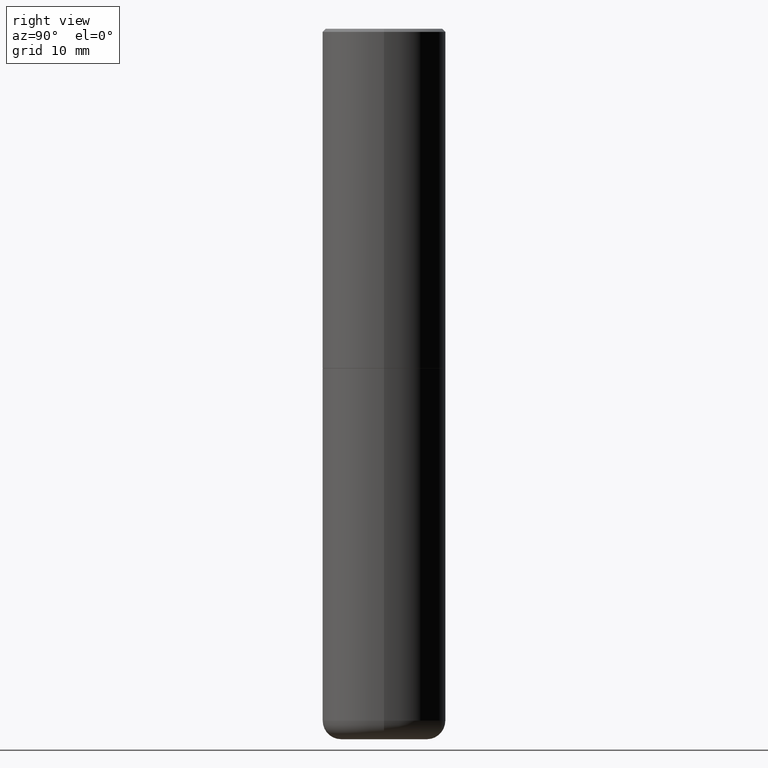
[diagram: clean part render]
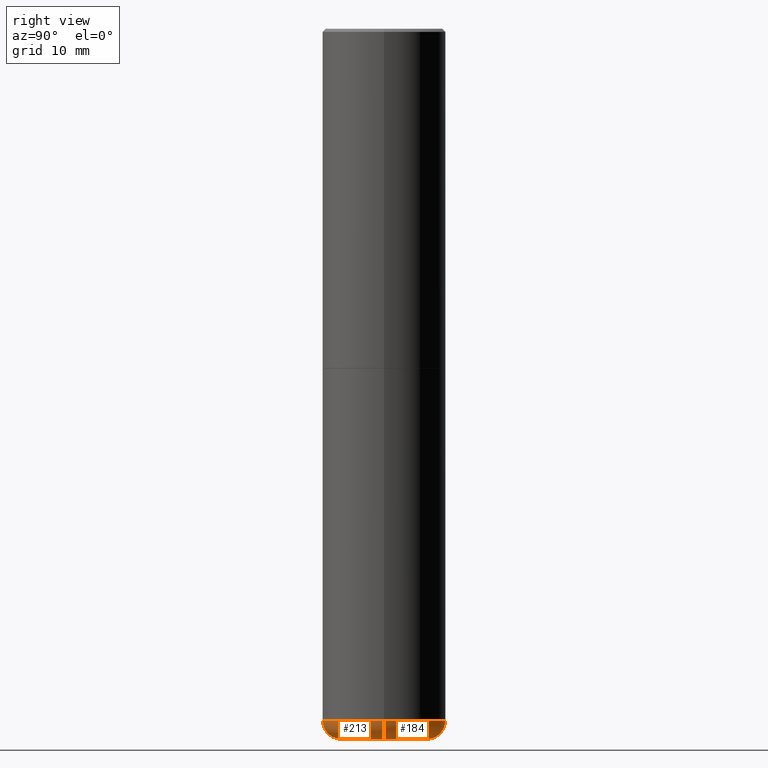
[diagram: same view with one multi-face feature highlighted, each face labeled with its STEP entity id]
A machine part, right view. The highlighted faces form ONE feature: a constant-radius fillet chain: 2 tangent blend faces with common blend radius 2.9997 mm. The faces share edges in the B-rep.
Their STEP definitions:
[1] entity #184 (Torus):
#2 = VERTEX_POINT ( 'NONE', #106 ) ;
#5 = DIRECTION ( 'NONE',  ( -2.445468806185136597E-29, 3.491481338843145583E-15, 1.000000000000000000 ) ) ;
#8 = VERTEX_POINT ( 'NONE', #70 ) ;
#26 = DIRECTION ( 'NONE',  ( -6.982962677686266711E-15, -1.000000000000000000, 3.491481338843145583E-15 ) ) ;
#27 = CARTESIAN_POINT ( 'NONE',  ( 1.078329470087335798E-28, -1.539568696362884818E-14, -4.409499999999999531 ) ) ;
#59 = ORIENTED_EDGE ( 'NONE', *, *, #405, .F. ) ;
#61 = CIRCLE ( 'NONE', #300, 0.1180999999999997191 ) ;
#64 = CARTESIAN_POINT ( 'NONE',  ( 0.2756000000000000116, -1.773253542371655569E-14, -4.527599999999998737 ) ) ;
#69 = AXIS2_PLACEMENT_3D ( 'NONE', #295, #5, #298 ) ;
#70 = CARTESIAN_POINT ( 'NONE',  ( 0.3936999999999998834, -1.814487936983393140E-14, -4.409499999999999531 ) ) ;
#75 = EDGE_CURVE ( 'NONE', #2, #132, #61, .T. ) ;
#76 = EDGE_CURVE ( 'NONE', #8, #132, #394, .T. ) ;
#106 = CARTESIAN_POINT ( 'NONE',  ( -0.2756000000000000116, -1.322402767146636311E-14, -4.527599999999998737 ) ) ;
#115 = DIRECTION ( 'NONE',  ( -2.445468806185136597E-29, 3.491481338843145583E-15, 1.000000000000000000 ) ) ;
#120 = CARTESIAN_POINT ( 'NONE',  ( -0.2756000000000000116, -1.343743118387401317E-14, -4.409499999999999531 ) ) ;
#123 = DIRECTION ( 'NONE',  ( 1.000000000000000000, -6.982962677686262766E-15, 0.000000000000000000 ) ) ;
#130 = TOROIDAL_SURFACE ( 'NONE', #248, 0.2756000000000000116, 0.1180999999999997468 ) ;
#132 = VERTEX_POINT ( 'NONE', #215 ) ;
#151 = EDGE_CURVE ( 'NONE', #167, #2, #209, .T. ) ;
#159 = DIRECTION ( 'NONE',  ( -2.445468806185136597E-29, 3.491481338843145583E-15, 1.000000000000000000 ) ) ;
#164 = AXIS2_PLACEMENT_3D ( 'NONE', #27, #159, #123 ) ;
#167 = VERTEX_POINT ( 'NONE', #64 ) ;
#184 = ADVANCED_FACE ( 'NONE', ( #219 ), #130, .T. ) ;
#194 = CARTESIAN_POINT ( 'NONE',  ( 0.2756000000000000116, -1.732019147759918314E-14, -4.409499999999999531 ) ) ;
#209 = CIRCLE ( 'NONE', #69, 0.2756000000000000116 ) ;
#215 = CARTESIAN_POINT ( 'NONE',  ( -0.3936999999999998834, -1.259828021294133576E-14, -4.409499999999999531 ) ) ;
#216 = DIRECTION ( 'NONE',  ( 1.000000000000000000, -6.982962677686268288E-15, 4.883557194083112901E-29 ) ) ;
#218 = CIRCLE ( 'NONE', #365, 0.1180999999999997191 ) ;
#219 = FACE_OUTER_BOUND ( 'NONE', #270, .T. ) ;
#248 = AXIS2_PLACEMENT_3D ( 'NONE', #397, #115, #216 ) ;
#258 = DIRECTION ( 'NONE',  ( -1.000000000000000000, 7.105427357601005014E-15, 0.000000000000000000 ) ) ;
#263 = ORIENTED_EDGE ( 'NONE', *, *, #151, .T. ) ;
#270 = EDGE_LOOP ( 'NONE', ( #263, #417, #359, #59 ) ) ;
#295 = CARTESIAN_POINT ( 'NONE',  ( 1.107210456688382074E-28, -1.580803090974622074E-14, -4.527599999999998737 ) ) ;
#298 = DIRECTION ( 'NONE',  ( 1.000000000000000000, -6.982962677686265922E-15, 0.000000000000000000 ) ) ;
#300 = AXIS2_PLACEMENT_3D ( 'NONE', #120, #319, #258 ) ;
#319 = DIRECTION ( 'NONE',  ( 7.105427357601001859E-15, 1.000000000000000000, -3.491481338843145583E-15 ) ) ;
#324 = DIRECTION ( 'NONE',  ( 1.000000000000000000, -6.982962677686273021E-15, 0.000000000000000000 ) ) ;
#359 = ORIENTED_EDGE ( 'NONE', *, *, #76, .F. ) ;
#365 = AXIS2_PLACEMENT_3D ( 'NONE', #194, #26, #324 ) ;
#394 = CIRCLE ( 'NONE', #164, 0.3937000000000000499 ) ;
#397 = CARTESIAN_POINT ( 'NONE',  ( 1.078329470087335798E-28, -1.539568696362884818E-14, -4.409499999999999531 ) ) ;
#405 = EDGE_CURVE ( 'NONE', #167, #8, #218, .T. ) ;
#417 = ORIENTED_EDGE ( 'NONE', *, *, #75, .T. ) ;
[2] entity #213 (Torus):
#2 = VERTEX_POINT ( 'NONE', #106 ) ;
#8 = VERTEX_POINT ( 'NONE', #70 ) ;
#14 = CARTESIAN_POINT ( 'NONE',  ( 1.078329470087335798E-28, -1.539568696362884818E-14, -4.409499999999999531 ) ) ;
#26 = DIRECTION ( 'NONE',  ( -6.982962677686266711E-15, -1.000000000000000000, 3.491481338843145583E-15 ) ) ;
#31 = ORIENTED_EDGE ( 'NONE', *, *, #146, .F. ) ;
#32 = CARTESIAN_POINT ( 'NONE',  ( 1.078329470087335798E-28, -1.539568696362884818E-14, -4.409499999999999531 ) ) ;
#36 = ORIENTED_EDGE ( 'NONE', *, *, #405, .T. ) ;
#61 = CIRCLE ( 'NONE', #300, 0.1180999999999997191 ) ;
#64 = CARTESIAN_POINT ( 'NONE',  ( 0.2756000000000000116, -1.773253542371655569E-14, -4.527599999999998737 ) ) ;
#70 = CARTESIAN_POINT ( 'NONE',  ( 0.3936999999999998834, -1.814487936983393140E-14, -4.409499999999999531 ) ) ;
#75 = EDGE_CURVE ( 'NONE', #2, #132, #61, .T. ) ;
#83 = CARTESIAN_POINT ( 'NONE',  ( 1.107210456688382074E-28, -1.580803090974622074E-14, -4.527599999999998737 ) ) ;
#106 = CARTESIAN_POINT ( 'NONE',  ( -0.2756000000000000116, -1.322402767146636311E-14, -4.527599999999998737 ) ) ;
#113 = DIRECTION ( 'NONE',  ( -2.445468806185136597E-29, 3.491481338843145583E-15, 1.000000000000000000 ) ) ;
#120 = CARTESIAN_POINT ( 'NONE',  ( -0.2756000000000000116, -1.343743118387401317E-14, -4.409499999999999531 ) ) ;
#131 = AXIS2_PLACEMENT_3D ( 'NONE', #83, #113, #374 ) ;
#132 = VERTEX_POINT ( 'NONE', #215 ) ;
#146 = EDGE_CURVE ( 'NONE', #132, #8, #340, .T. ) ;
#156 = AXIS2_PLACEMENT_3D ( 'NONE', #32, #302, #168 ) ;
#167 = VERTEX_POINT ( 'NONE', #64 ) ;
#168 = DIRECTION ( 'NONE',  ( 1.000000000000000000, -6.982962677686262766E-15, 0.000000000000000000 ) ) ;
#169 = ORIENTED_EDGE ( 'NONE', *, *, #289, .T. ) ;
#182 = DIRECTION ( 'NONE',  ( -2.445468806185136597E-29, 3.491481338843145583E-15, 1.000000000000000000 ) ) ;
#194 = CARTESIAN_POINT ( 'NONE',  ( 0.2756000000000000116, -1.732019147759918314E-14, -4.409499999999999531 ) ) ;
#213 = ADVANCED_FACE ( 'NONE', ( #373 ), #275, .T. ) ;
#215 = CARTESIAN_POINT ( 'NONE',  ( -0.3936999999999998834, -1.259828021294133576E-14, -4.409499999999999531 ) ) ;
#218 = CIRCLE ( 'NONE', #365, 0.1180999999999997191 ) ;
#247 = DIRECTION ( 'NONE',  ( 1.000000000000000000, -6.982962677686268288E-15, 4.883557194083112901E-29 ) ) ;
#258 = DIRECTION ( 'NONE',  ( -1.000000000000000000, 7.105427357601005014E-15, 0.000000000000000000 ) ) ;
#259 = CIRCLE ( 'NONE', #131, 0.2756000000000000116 ) ;
#275 = TOROIDAL_SURFACE ( 'NONE', #292, 0.2756000000000000116, 0.1180999999999997468 ) ;
#289 = EDGE_CURVE ( 'NONE', #2, #167, #259, .T. ) ;
#292 = AXIS2_PLACEMENT_3D ( 'NONE', #14, #182, #247 ) ;
#299 = EDGE_LOOP ( 'NONE', ( #305, #169, #36, #31 ) ) ;
#300 = AXIS2_PLACEMENT_3D ( 'NONE', #120, #319, #258 ) ;
#302 = DIRECTION ( 'NONE',  ( -2.445468806185136597E-29, 3.491481338843145583E-15, 1.000000000000000000 ) ) ;
#305 = ORIENTED_EDGE ( 'NONE', *, *, #75, .F. ) ;
#319 = DIRECTION ( 'NONE',  ( 7.105427357601001859E-15, 1.000000000000000000, -3.491481338843145583E-15 ) ) ;
#324 = DIRECTION ( 'NONE',  ( 1.000000000000000000, -6.982962677686273021E-15, 0.000000000000000000 ) ) ;
#340 = CIRCLE ( 'NONE', #156, 0.3937000000000000499 ) ;
#365 = AXIS2_PLACEMENT_3D ( 'NONE', #194, #26, #324 ) ;
#373 = FACE_OUTER_BOUND ( 'NONE', #299, .T. ) ;
#374 = DIRECTION ( 'NONE',  ( 1.000000000000000000, -6.982962677686265922E-15, 0.000000000000000000 ) ) ;
#405 = EDGE_CURVE ( 'NONE', #167, #8, #218, .T. ) ;